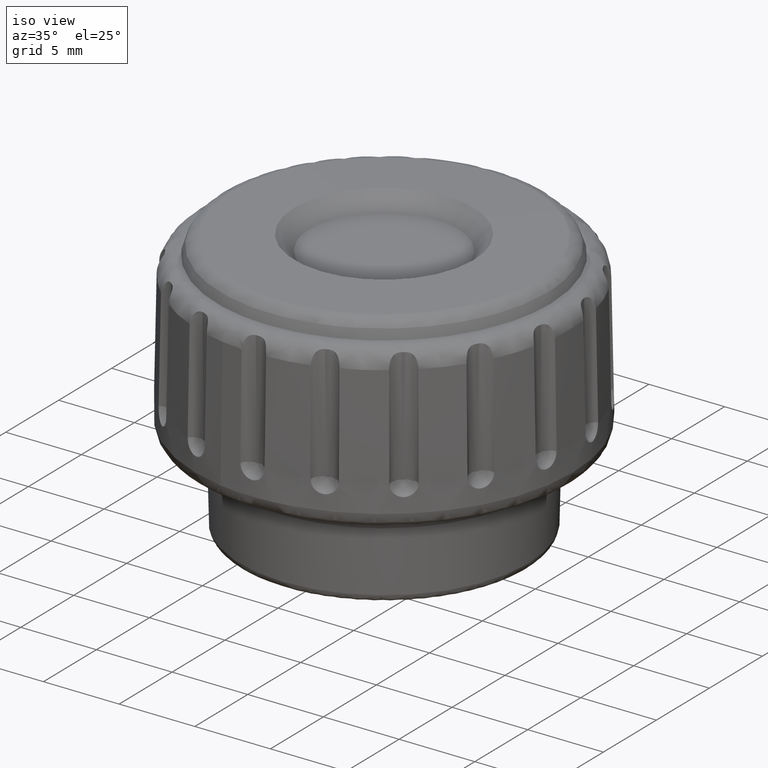
[diagram: clean part render]
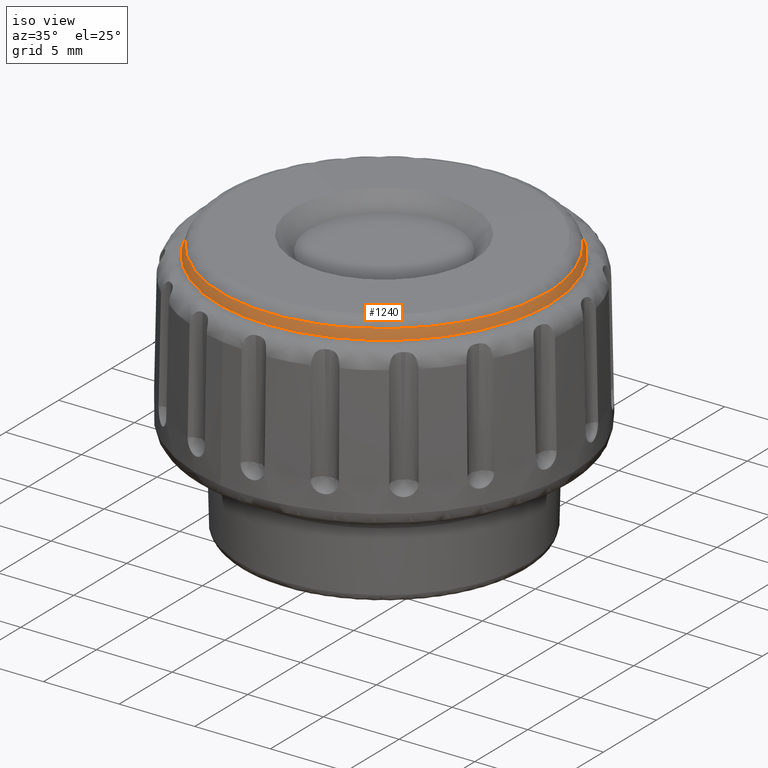
[diagram: same view with one face highlighted and labeled with its STEP entity id]
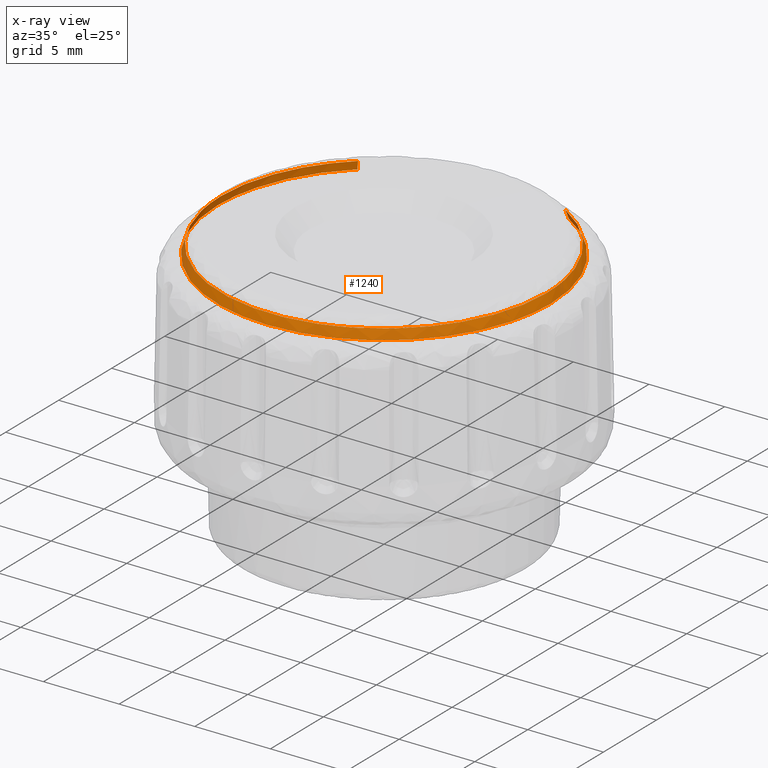
[diagram: x-ray of the same camera — body ghosted, the highlighted face saturated]
A machine part, iso view. The second image highlights one B-rep face of the part: STEP entity #1240.
The next image is the same camera in x-ray: the body ghosted, the highlighted face saturated — about 0% of this face is hidden behind the body in this view.
In plain terms, the highlighted face is a freeform B-spline surface patch.
Its self-contained STEP definition (entity closure, byte-faithful):
#1048=CARTESIAN_POINT('',(5.454273129271601,9.291496102041137,17.320668315137915));
#1049=CARTESIAN_POINT('',(6.850051939172639,8.472149166559186,17.320668315137912));
#1050=CARTESIAN_POINT('',(7.943491692479970,7.278869068367805,17.320668315137912));
#1051=CARTESIAN_POINT('',(15.222360760847769,-0.664622624112165,17.320668315137908));
#1052=CARTESIAN_POINT('',(7.278869068367805,-7.943491692479970,17.320668315137912));
#1053=CARTESIAN_POINT('',(-0.664622624112165,-15.222360760847769,17.320668315137908));
#1054=CARTESIAN_POINT('',(-7.943491692479970,-7.278869068367805,17.320668315137912));
#1055=CARTESIAN_POINT('',(-15.222360760847769,0.664622624112165,17.320668315137908));
#1056=CARTESIAN_POINT('',(-7.278869068367805,7.943491692479970,17.320668315137912));
#1057=CARTESIAN_POINT('',(5.571497372795730,9.491190649042055,16.684480217121553));
#1058=CARTESIAN_POINT('',(6.997274518174241,8.654234158185945,16.684480217121550));
#1059=CARTESIAN_POINT('',(8.114214680222155,7.435307864157362,16.684480217121550));
#1060=CARTESIAN_POINT('',(15.549522544379522,-0.678906816064792,16.684480217121550));
#1061=CARTESIAN_POINT('',(7.435307864157362,-8.114214680222155,16.684480217121550));
#1062=CARTESIAN_POINT('',(-0.678906816064792,-15.549522544379522,16.684480217121550));
#1063=CARTESIAN_POINT('',(-8.114214680222155,-7.435307864157362,16.684480217121550));
#1064=CARTESIAN_POINT('',(-15.549522544379522,0.678906816064792,16.684480217121550));
#1065=CARTESIAN_POINT('',(-7.435307864157362,8.114214680222155,16.684480217121550));
#1073=(BOUNDED_SURFACE()B_SPLINE_SURFACE(2,1,((#1048,#1057),(#1049,#1058),(#1050,#1059),(#1051,#1060),(#1052,#1061),(#1053,#1062),(#1054,#1063),(#1055,#1064),(#1056,#1065)),.UNSPECIFIED.,.F.,.F.,.U.)B_SPLINE_SURFACE_WITH_KNOTS((3,2,2,2,3),(2,2),(0.0,3.646950856345625,21.881705138073752,40.116459419801878,58.351213701530000),(0.0,1.0),.UNSPECIFIED.)GEOMETRIC_REPRESENTATION_ITEM()RATIONAL_B_SPLINE_SURFACE(((0.906274169979695,0.906274169979695),(0.941421356237309,0.941421356237309),(1.0,1.0),(0.707106781186548,0.707106781186548),(1.0,1.0),(0.707106781186548,0.707106781186548),(1.0,1.0),(0.707106781186548,0.707106781186548),(1.0,1.0)))REPRESENTATION_ITEM('')SURFACE());
#1074=CARTESIAN_POINT('',(5.457062522342318,9.296247905669102,17.305529990343238));
#1075=VERTEX_POINT('',#1074);
#1076=CARTESIAN_POINT('',(10.209340024644799,3.459643443668705,17.305529990378449));
#1077=VERTEX_POINT('',#1076);
#1078=CARTESIAN_POINT('',(5.457062522342318,9.296247905669102,17.305529990343238));
#1079=CARTESIAN_POINT('',(5.819675371172376,9.083396863666351,17.305529990345239));
#1080=CARTESIAN_POINT('',(6.586649083809184,8.570608356679804,17.305529990349552));
#1081=CARTESIAN_POINT('',(7.645240383441594,7.646861607116983,17.305529990356320));
#1082=CARTESIAN_POINT('',(8.620807480377330,6.527308713283453,17.305529990363290));
#1083=CARTESIAN_POINT('',(9.523123797275527,5.150884968350534,17.305529990370768));
#1084=CARTESIAN_POINT('',(9.997347216666620,4.085453262653275,17.305529990375739));
#1085=CARTESIAN_POINT('',(10.209340024644799,3.459643443668705,17.305529990378449));
#1086=B_SPLINE_CURVE_WITH_KNOTS('',3,(#1078,#1079,#1080,#1081,#1082,#1083,#1084,#1085),.UNSPECIFIED.,.F.,.U.,(4,1,1,1,1,4),(2.327628E-009,1.261406648379093,2.763084574690780,4.204688705401186,5.706365549105540,7.688576849341589),.UNSPECIFIED.);
#1087=EDGE_CURVE('',#1075,#1077,#1086,.T.);
#1088=ORIENTED_EDGE('',*,*,#1087,.T.);
#1089=CARTESIAN_POINT('',(10.779599087937020,0.0,17.305529990312351));
#1090=VERTEX_POINT('',#1089);
#1091=CARTESIAN_POINT('',(10.209340024644799,3.459643443668705,17.305529990378449));
#1092=CARTESIAN_POINT('',(10.391879930107789,2.921083248993400,17.305529990357240));
#1093=CARTESIAN_POINT('',(10.680432342404600,1.779314418680946,17.305529990323969));
#1094=CARTESIAN_POINT('',(10.779646823628561,0.605340590625755,17.305529990312252));
#1095=CARTESIAN_POINT('',(10.779599087937020,0.0,17.305529990312351));
#1096=B_SPLINE_CURVE_WITH_KNOTS('',3,(#1091,#1092,#1093,#1094,#1095),.UNSPECIFIED.,.F.,.U.,(4,1,4),(5.523098E-010,1.705958547466163,3.521975192186915),.UNSPECIFIED.);
#1097=EDGE_CURVE('',#1077,#1090,#1096,.T.);
#1098=ORIENTED_EDGE('',*,*,#1097,.T.);
#1099=CARTESIAN_POINT('',(2.870085040328625,-10.390494134458280,17.305529990277009));
#1100=VERTEX_POINT('',#1099);
#1101=CARTESIAN_POINT('',(10.779599087937020,0.0,17.305529990312351));
#1102=CARTESIAN_POINT('',(10.779624289560781,-0.493152785161863,17.305529990312390));
#1103=CARTESIAN_POINT('',(10.726856380383740,-1.260269808239503,17.305529990312071));
#1104=CARTESIAN_POINT('',(10.525948589271559,-2.394133185260505,17.305529990311229));
#1105=CARTESIAN_POINT('',(10.246186277102250,-3.417453206580627,17.305529990309971));
#1106=CARTESIAN_POINT('',(9.735501922445319,-4.710578238975901,17.305529990307569));
#1107=CARTESIAN_POINT('',(9.003028402941434,-6.001971524219924,17.305529990304489));
#1108=CARTESIAN_POINT('',(8.030518266206766,-7.239867086339820,17.305529990300119));
#1109=CARTESIAN_POINT('',(7.110645265784758,-8.132169341667380,17.305529990295970));
#1110=CARTESIAN_POINT('',(6.083918690517936,-8.926329351810269,17.305529990291500));
#1111=CARTESIAN_POINT('',(4.754452249757381,-9.735160099772214,17.305529990285422));
#1112=CARTESIAN_POINT('',(3.591952215762482,-10.191216907735409,17.305529990280132));
#1113=CARTESIAN_POINT('',(2.870085040328625,-10.390494134458280,17.305529990277009));
#1114=B_SPLINE_CURVE_WITH_KNOTS('',3,(#1101,#1102,#1103,#1104,#1105,#1106,#1107,#1108,#1109,#1110,#1111,#1112,#1113),.UNSPECIFIED.,.F.,.U.,(4,1,1,1,1,1,1,1,1,1,4),(8.252952E-009,1.479454807548951,2.301376320800655,3.452066599140409,4.657553356868142,6.465783514390984,7.890437371265571,9.369894390147277,10.301404261256200,11.780865741054701,14.027444996524039),.UNSPECIFIED.);
#1115=EDGE_CURVE('',#1090,#1100,#1114,.T.);
#1116=ORIENTED_EDGE('',*,*,#1115,.T.);
#1117=CARTESIAN_POINT('',(-10.779599087937020,0.0,17.305529990312351));
#1118=VERTEX_POINT('',#1117);
#1119=CARTESIAN_POINT('',(2.870085040328625,-10.390494134458280,17.305529990277009));
#1120=CARTESIAN_POINT('',(2.459274571845374,-10.503981146094420,17.305529990278959));
#1121=CARTESIAN_POINT('',(1.674779925607573,-10.671324674555800,17.305529990282519));
#1122=CARTESIAN_POINT('',(0.259117537464777,-10.811664497418160,17.305529990288541));
#1123=CARTESIAN_POINT('',(-1.295260643958210,-10.750072660542401,17.305529990295049));
#1124=CARTESIAN_POINT('',(-2.728926970353039,-10.454700448470261,17.305529990300101));
#1125=CARTESIAN_POINT('',(-4.103097305772980,-9.999381807195402,17.305529990305210));
#1126=CARTESIAN_POINT('',(-5.355496875690958,-9.403695106254913,17.305529990308941));
#1127=CARTESIAN_POINT('',(-6.586900472872244,-8.567089512670389,17.305529990312330));
#1128=CARTESIAN_POINT('',(-7.579648290192607,-7.698241908273730,17.305529990314859));
#1129=CARTESIAN_POINT('',(-8.370852200489248,-6.826205859458094,17.305529990316170));
#1130=CARTESIAN_POINT('',(-9.122142635834480,-5.789746131787594,17.305529990315950));
#1131=CARTESIAN_POINT('',(-9.748225094507543,-4.671497960441286,17.305529990318728));
#1132=CARTESIAN_POINT('',(-10.277489487663489,-3.350234336072087,17.305529990315708));
#1133=CARTESIAN_POINT('',(-10.673901995068720,-1.808095685610647,17.305529990317378));
#1134=CARTESIAN_POINT('',(-10.779671876166461,-0.658675061183595,17.305529990312358));
#1135=CARTESIAN_POINT('',(-10.779599087937020,0.0,17.305529990312351));
#1136=B_SPLINE_CURVE_WITH_KNOTS('',3,(#1119,#1120,#1121,#1122,#1123,#1124,#1125,#1126,#1127,#1128,#1129,#1130,#1131,#1132,#1133,#1134,#1135),.UNSPECIFIED.,.F.,.U.,(4,1,1,1,1,1,1,1,1,1,1,1,1,1,4),(0.000000014710135,1.278592637566277,2.402213252610991,4.262002218464044,5.928062878330746,6.780461496701300,8.601507701705113,10.073819682198209,11.236184873251309,12.553537527448899,13.599666377607390,15.071995524314779,16.389346279292170,17.861678970547558,19.837690087348498),.UNSPECIFIED.);
#1137=EDGE_CURVE('',#1100,#1118,#1136,.T.);
#1138=ORIENTED_EDGE('',*,*,#1137,.T.);
#1139=CARTESIAN_POINT('',(-7.282591585835776,7.947554107438149,17.305529990300830));
#1140=VERTEX_POINT('',#1139);
#1141=CARTESIAN_POINT('',(-10.779599087937020,0.0,17.305529990312351));
#1142=CARTESIAN_POINT('',(-10.779714718288760,0.721457797488089,17.305529990310148));
#1143=CARTESIAN_POINT('',(-10.674047077362040,1.768672958075802,17.305529990307349));
#1144=CARTESIAN_POINT('',(-10.327790695778990,3.146928791198246,17.305529990304350));
#1145=CARTESIAN_POINT('',(-9.966997549325173,4.156356280809330,17.305529990302642));
#1146=CARTESIAN_POINT('',(-9.382910834252705,5.375259379307827,17.305529990301050));
#1147=CARTESIAN_POINT('',(-8.521552161299320,6.681632528996163,17.305529990300091));
#1148=CARTESIAN_POINT('',(-7.711570102957800,7.554511116505005,17.305529990300510));
#1149=CARTESIAN_POINT('',(-7.282591585835776,7.947554107438149,17.305529990300830));
#1150=B_SPLINE_CURVE_WITH_KNOTS('',3,(#1141,#1142,#1143,#1144,#1145,#1146,#1147,#1148,#1149),.UNSPECIFIED.,.F.,.U.,(4,1,1,1,1,1,4),(1.545930E-009,2.164342872887729,3.141789525611952,4.258871720340641,5.375945735001317,7.191205315376053,8.936641686029972),.UNSPECIFIED.);
#1151=EDGE_CURVE('',#1118,#1140,#1150,.T.);
#1152=ORIENTED_EDGE('',*,*,#1151,.T.);
#1153=CARTESIAN_POINT('',(-7.431492283772249,8.110050704911373,16.699997000000000));
#1154=VERTEX_POINT('',#1153);
#1155=CARTESIAN_POINT('',(-7.282591585835776,7.947554107438149,17.305529990300830));
#1156=CARTESIAN_POINT('',(-7.431492283772249,8.110050704911373,16.699997000000000));
#1157=QUASI_UNIFORM_CURVE('',1,(#1155,#1156),.UNSPECIFIED.,.F.,.U.);
#1158=EDGE_CURVE('',#1140,#1154,#1157,.T.);
#1159=ORIENTED_EDGE('',*,*,#1158,.T.);
#1160=CARTESIAN_POINT('',(-11.0,0.0,16.699997000000000));
#1161=VERTEX_POINT('',#1160);
#1162=CARTESIAN_POINT('',(-7.431492283772249,8.110050704911373,16.699997000000000));
#1163=CARTESIAN_POINT('',(-7.781686361849975,7.789180729613373,16.699997000000039));
#1164=CARTESIAN_POINT('',(-8.456874574509799,7.084795723338516,16.699996999999971));
#1165=CARTESIAN_POINT('',(-9.229755842029384,6.028101284225559,16.699997000000010));
#1166=CARTESIAN_POINT('',(-9.830205610207120,4.974821767201931,16.699997000000000));
#1167=CARTESIAN_POINT('',(-10.286966566798560,3.954747070576175,16.699997000000000));
#1168=CARTESIAN_POINT('',(-10.617664357817540,2.936826130875815,16.699997000000010));
#1169=CARTESIAN_POINT('',(-10.913588897305379,1.614862963089643,16.699997000000010));
#1170=CARTESIAN_POINT('',(-11.000074792136070,0.664958737159224,16.699997000000000));
#1171=CARTESIAN_POINT('',(-11.0,0.0,16.699997000000000));
#1172=B_SPLINE_CURVE_WITH_KNOTS('',3,(#1162,#1163,#1164,#1165,#1166,#1167,#1168,#1169,#1170,#1171),.UNSPECIFIED.,.F.,.U.,(4,1,1,1,1,1,1,4),(1.210397E-009,1.424900141782398,2.921045474655471,3.918479924908403,5.058391419041953,6.269560260467866,7.124501723828919,9.119361280913315),.UNSPECIFIED.);
#1173=EDGE_CURVE('',#1154,#1161,#1172,.T.);
#1174=ORIENTED_EDGE('',*,*,#1173,.T.);
#1175=CARTESIAN_POINT('',(0.0,-11.0,16.699997000000000));
#1176=VERTEX_POINT('',#1175);
#1177=CARTESIAN_POINT('',(-11.0,0.0,16.699997000000000));
#1178=CARTESIAN_POINT('',(-11.000092351925939,-0.719953041116364,16.699997000000021));
#1179=CARTESIAN_POINT('',(-10.878068892886100,-1.957329102558037,16.699996999999971));
#1180=CARTESIAN_POINT('',(-10.461623269583161,-3.480227818005520,16.699997000000039));
#1181=CARTESIAN_POINT('',(-9.998118655207302,-4.628967533930528,16.699996999999939));
#1182=CARTESIAN_POINT('',(-9.392823373822470,-5.787007381271029,16.699997000000110));
#1183=CARTESIAN_POINT('',(-8.600058673598198,-6.912618580269094,16.699997000000071));
#1184=CARTESIAN_POINT('',(-7.526551766744236,-8.068237368884113,16.699996999999879));
#1185=CARTESIAN_POINT('',(-6.532087161696977,-8.884365107406552,16.699996999999769));
#1186=CARTESIAN_POINT('',(-5.279013619594593,-9.683280481225019,16.699997000000771));
#1187=CARTESIAN_POINT('',(-4.097067757874267,-10.246745213454931,16.699996999999978));
#1188=CARTESIAN_POINT('',(-2.808212959884489,-10.655002536065650,16.699996999999609));
#1189=CARTESIAN_POINT('',(-1.507377473388703,-10.926231546237060,16.699997000000920));
#1190=CARTESIAN_POINT('',(-0.584961284965776,-11.000046970078170,16.699996999998579));
#1191=CARTESIAN_POINT('',(0.0,-11.0,16.699997000000000));
#1192=B_SPLINE_CURVE_WITH_KNOTS('',3,(#1177,#1178,#1179,#1180,#1181,#1182,#1183,#1184,#1185,#1186,#1187,#1188,#1189,#1190,#1191),.UNSPECIFIED.,.F.,.U.,(4,1,1,1,1,1,1,1,1,1,1,1,4),(5.149825E-009,2.159843687343669,3.712237910639974,4.724669451944108,5.872090610807609,7.626971644867572,8.841870782737304,10.596749799507570,11.474193721521980,13.296567160845139,14.511485571650271,15.523910936300741,17.278786700102259),.UNSPECIFIED.);
#1193=EDGE_CURVE('',#1161,#1176,#1192,.T.);
#1194=ORIENTED_EDGE('',*,*,#1193,.T.);
#1195=CARTESIAN_POINT('',(11.0,0.0,16.699997000000000));
#1196=VERTEX_POINT('',#1195);
#1197=CARTESIAN_POINT('',(0.0,-11.0,16.699997000000000));
#1198=CARTESIAN_POINT('',(0.404968246254352,-11.000004113409430,16.699996999999978));
#1199=CARTESIAN_POINT('',(1.349903555707001,-10.947782507800049,16.699997000000099));
#1200=CARTESIAN_POINT('',(2.636237829066511,-10.708282636620339,16.699996999999790));
#1201=CARTESIAN_POINT('',(3.989092004155510,-10.279703550233871,16.699997000000241));
#1202=CARTESIAN_POINT('',(5.118484325358612,-9.766579891056850,16.699996999999851));
#1203=CARTESIAN_POINT('',(6.369707302261702,-9.006166697451576,16.699996999999929));
#1204=CARTESIAN_POINT('',(7.409364565491985,-8.174099430528248,16.699997000000248));
#1205=CARTESIAN_POINT('',(8.344413396641613,-7.197936818573119,16.699996999999978));
#1206=CARTESIAN_POINT('',(9.103749231665077,-6.218777166371487,16.699996999999801));
#1207=CARTESIAN_POINT('',(9.814404218502434,-5.041368836257311,16.699997000000849));
#1208=CARTESIAN_POINT('',(10.387189960391600,-3.716386329155885,16.699996999999730));
#1209=CARTESIAN_POINT('',(10.755883322982010,-2.415161327849866,16.699997000000302));
#1210=CARTESIAN_POINT('',(10.956464605227270,-1.192409005964889,16.699996999999410));
#1211=CARTESIAN_POINT('',(11.000009392442630,-0.404968575467054,16.699997000000842));
#1212=CARTESIAN_POINT('',(11.0,0.0,16.699997000000000));
#1213=B_SPLINE_CURVE_WITH_KNOTS('',3,(#1197,#1198,#1199,#1200,#1201,#1202,#1203,#1204,#1205,#1206,#1207,#1208,#1209,#1210,#1211,#1212),.UNSPECIFIED.,.F.,.U.,(4,1,1,1,1,1,1,1,1,1,1,1,1,4),(5.149193E-009,1.214908777271756,2.834797401393786,3.914725112042635,5.467119665378210,6.547044965914344,8.301927892508786,9.449336092782176,10.596749799507791,12.014155398845460,13.566548610677501,14.916455542118340,16.063880033210129,17.278786700102259),.UNSPECIFIED.);
#1214=EDGE_CURVE('',#1176,#1196,#1213,.T.);
#1215=ORIENTED_EDGE('',*,*,#1214,.T.);
#1216=CARTESIAN_POINT('',(5.568638244904900,9.486320050334715,16.699997000000000));
#1217=VERTEX_POINT('',#1216);
#1218=CARTESIAN_POINT('',(11.0,0.0,16.699997000000000));
#1219=CARTESIAN_POINT('',(11.000098289951540,0.700098308201904,16.699997000000032));
#1220=CARTESIAN_POINT('',(10.901519232682340,1.727848166539512,16.699996999999961));
#1221=CARTESIAN_POINT('',(10.543007498036980,3.221192906622008,16.699997000000081));
#1222=CARTESIAN_POINT('',(10.123907853553710,4.371569935090587,16.699996999999520));
#1223=CARTESIAN_POINT('',(9.555060867512800,5.487969036912554,16.699997000001190));
#1224=CARTESIAN_POINT('',(8.973098714323733,6.390333452214414,16.699996999998721));
#1225=CARTESIAN_POINT('',(8.346471056836190,7.187421173008080,16.699997000001510));
#1226=CARTESIAN_POINT('',(7.610307632090102,7.968813809912501,16.699996999999382));
#1227=CARTESIAN_POINT('',(6.696699458660987,8.759866580210485,16.699997000000309));
#1228=CARTESIAN_POINT('',(5.966864616746906,9.252572231644708,16.699996999999890));
#1229=CARTESIAN_POINT('',(5.568638244904900,9.486320050334715,16.699997000000000));
#1230=B_SPLINE_CURVE_WITH_KNOTS('',3,(#1218,#1219,#1220,#1221,#1222,#1223,#1224,#1225,#1226,#1227,#1228,#1229),.UNSPECIFIED.,.F.,.U.,(4,1,1,1,1,1,1,1,1,4),(5.561297E-009,2.100267434088600,3.083372474712217,4.602716411678555,5.764557802887014,6.837041478133553,7.820146749109143,8.803251449379795,10.054479225881151,11.439758079977191),.UNSPECIFIED.);
#1231=EDGE_CURVE('',#1196,#1217,#1230,.T.);
#1232=ORIENTED_EDGE('',*,*,#1231,.T.);
#1233=CARTESIAN_POINT('',(5.457062522342318,9.296247905669102,17.305529990343238));
#1234=CARTESIAN_POINT('',(5.568638244904900,9.486320050334715,16.699997000000000));
#1235=QUASI_UNIFORM_CURVE('',1,(#1233,#1234),.UNSPECIFIED.,.F.,.U.);
#1236=EDGE_CURVE('',#1075,#1217,#1235,.T.);
#1237=ORIENTED_EDGE('',*,*,#1236,.F.);
#1238=EDGE_LOOP('',(#1088,#1098,#1116,#1138,#1152,#1159,#1174,#1194,#1215,#1232,#1237));
#1239=FACE_OUTER_BOUND('',#1238,.T.);
#1240=ADVANCED_FACE('',(#1239),#1073,.T.);